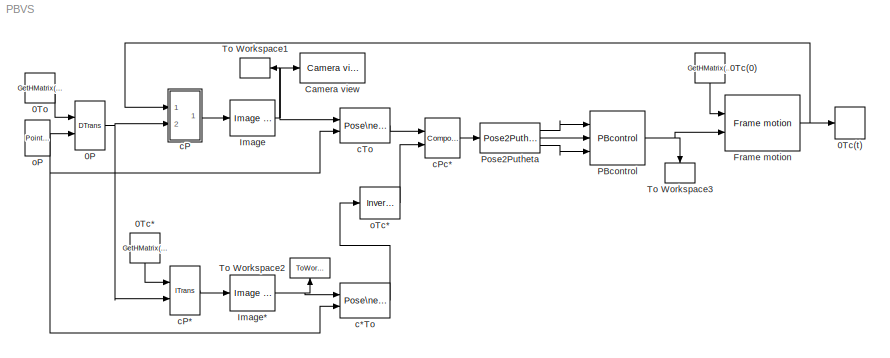
MODEL PBVS
KIND model
BLOCK [Reference] 0P  REF=vs/Features/DTrans  (lib defined in slx_df1018bcac68)
  Ports = [2, 1]
  RTWFcnNameOpts = Auto
  RTWFileNameOpts = Auto
  RTWSystemCode = Auto
  SID = 1
  ShowPortLabels = on
  SourceBlock = vs/Features/DTrans
  SourceType = SubSystem
  TreatAsAtomicUnit = off
BLOCK [Constant] 0Tc(0)
  SID = 2
  Value = GetHMatrix(T0c_0)
  VectorParams1D = off
BLOCK [ToWorkspace] 0Tc(t)
  MaxDataPoints = inf
  Ports = [1]
  SID = 3
  SampleTime = -1
  SaveFormat = Structure With Time
  VariableName = T0c
BLOCK [Constant] 0Tc*
  SID = 4
  Value = GetHMatrix(T0c_x)
  VectorParams1D = off
BLOCK [Constant] 0To
  SID = 5
  Value = GetHMatrix(T0o)
  VectorParams1D = off
BLOCK [Reference] Camera view  REF=vs/Camera/Camera view  (lib defined in slx_df1018bcac68)
  Ports = [1]
  SID = 6
  SourceBlock = vs/Camera/Camera view
  em = normal
  ms = 15
  st = -1
  umax = get(c,'hres')-1
  umin = 0
  vmax = get(c,'vres')-1
  vmin = 0
BLOCK [Reference] Frame motion  REF=vs/Pose/Frame motion  (lib defined in slx_df1018bcac68)
  Ports = [2, 1]
  RTWFcnNameOpts = Auto
  RTWFileNameOpts = Auto
  RTWSystemCode = Auto
  SID = 7
  ShowPortLabels = on
  SourceBlock = vs/Pose/Frame motion
  SourceType = SubSystem
  TreatAsAtomicUnit = off
BLOCK [Reference] Image  REF=vs/Camera/Image of RSP  (lib defined in slx_df1018bcac68)
  Ports = [1, 1]
  SID = 8
  SourceBlock = vs/Camera/Image of RSP
  fu = get(c,'fu')
  fv = get(c,'fv')
  u0 = get(c,'u0')
  v0 = get(c,'v0')
BLOCK [Reference] Image*  REF=vs/Camera/Image of RSP  (lib defined in slx_df1018bcac68)
  Ports = [1, 1]
  SID = 9
  SourceBlock = vs/Camera/Image of RSP
  fu = get(c,'fu')
  fv = get(c,'fv')
  u0 = get(c,'u0')
  v0 = get(c,'v0')
BLOCK [Reference] PBcontrol  REF=vs/Jacobian/PBcontrol  (lib defined in slx_df1018bcac68)
  Ports = [3, 1]
  SID = 10
  SourceBlock = vs/Jacobian/PBcontrol
  lambda = lambda
BLOCK [Reference] Pose2Putheta  REF=vs/Pose/Pose2Putheta  (lib defined in slx_df1018bcac68)
  Ports = [1, 3]
  RTWFcnNameOpts = Auto
  RTWFileNameOpts = Auto
  RTWSystemCode = Auto
  SID = 11
  ShowPortLabels = on
  SourceBlock = vs/Pose/Pose2Putheta
  SourceType = SubSystem
  TreatAsAtomicUnit = off
BLOCK [ToWorkspace] To Workspace1
  MaxDataPoints = inf
  Ports = [1]
  SID = 12
  SampleTime = -1
  SaveFormat = Structure With Time
  VariableName = img
BLOCK [ToWorkspace] To Workspace2
  MaxDataPoints = inf
  Ports = [1]
  SID = 13
  SampleTime = -1
  SaveFormat = Structure With Time
  VariableName = img_x
BLOCK [ToWorkspace] To Workspace3
  MaxDataPoints = inf
  Ports = [1]
  SID = 14
  SampleTime = -1
  SaveFormat = Structure With Time
  VariableName = cVc
BLOCK [Reference] c*To  REF=vs/Camera/Pose\nestimation  (lib defined in slx_df1018bcac68)
  Ports = [2, 1]
  SID = 15
  SourceBlock = vs/Camera/Pose\nestimation
  fu = get(c,'fu')
  fv = get(c,'fv')
  threshold = 0.001
  u0 = get(c,'u0')
  v0 = get(c,'v0')
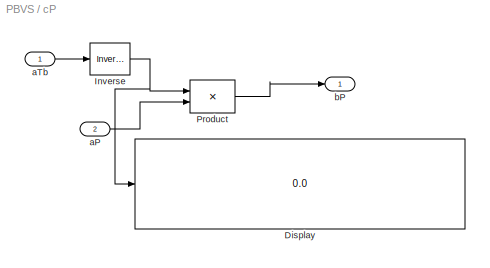
BLOCK [SubSystem] cP
  AncestorBlock = vs/Features/ITrans
  Ports = [2, 1]
  RequestExecContextInheritance = off
  SID = 16
BLOCK [Reference] cP*  REF=vs/Features/ITrans  (lib defined in slx_df1018bcac68)
  Ports = [2, 1]
  RTWFcnNameOpts = Auto
  RTWFileNameOpts = Auto
  RTWSystemCode = Auto
  SID = 17
  ShowPortLabels = on
  SourceBlock = vs/Features/ITrans
  SourceType = SubSystem
  TreatAsAtomicUnit = off
BLOCK [Display] cP/Display
  Decimation = 1
  Ports = [1]
  SID = 16:3
BLOCK [Reference] cP/Inverse  REF=vs/Pose/Inverse  (lib defined in slx_df1018bcac68)
  Ports = [1, 1]
  RTWFcnNameOpts = Auto
  RTWFileNameOpts = Auto
  RTWSystemCode = Auto
  SID = 16:4
  ShowPortLabels = on
  SourceBlock = vs/Pose/Inverse
  SourceType = SubSystem
  TreatAsAtomicUnit = off
BLOCK [Product] cP/Product
  Multiplication = Matrix(*)
  Ports = [2, 1]
  SID = 16:5
BLOCK [Inport] cP/aP
  IconDisplay = Port number
  Port = 2
  SID = 16:2
BLOCK [Inport] cP/aTb
  IconDisplay = Port number
  SID = 16:1
BLOCK [Outport] cP/bP
  IconDisplay = Port number
  SID = 16:6
BLOCK [Reference] cPc*  REF=vs/Pose/Composition  (lib defined in slx_df1018bcac68)
  Ports = [2, 1]
  RTWFcnNameOpts = Auto
  RTWFileNameOpts = Auto
  RTWSystemCode = Auto
  SID = 18
  ShowPortLabels = on
  SourceBlock = vs/Pose/Composition
  SourceType = SubSystem
  TreatAsAtomicUnit = off
BLOCK [Reference] cTo  REF=vs/Camera/Pose\nestimation  (lib defined in slx_df1018bcac68)
  Ports = [2, 1]
  SID = 19
  SourceBlock = vs/Camera/Pose\nestimation
  fu = get(c,'fu')
  fv = get(c,'fv')
  threshold = 0.001
  u0 = get(c,'u0')
  v0 = get(c,'v0')
BLOCK [Reference] oP  REF=vs/Features/Point Matrix  (lib defined in slx_df1018bcac68)
  Ports = [0, 1]
  SID = 20
  SourceBlock = vs/Features/Point Matrix
  m = coords(p)
BLOCK [Reference] oTc*  REF=vs/Pose/Inverse  (lib defined in slx_df1018bcac68)
  Ports = [1, 1]
  RTWFcnNameOpts = Auto
  RTWFileNameOpts = Auto
  RTWSystemCode = Auto
  SID = 21
  ShowPortLabels = on
  SourceBlock = vs/Pose/Inverse
  SourceType = SubSystem
  TreatAsAtomicUnit = off
NET 0P:1 -> cP*:2, cP:2
LINE 0Tc(0):1 -> Frame motion:1
LINE 0Tc*:1 -> cP*:1
LINE 0To:1 -> 0P:1
NET Frame motion:1 -> 0Tc(t):1, cP:1
NET Image*:1 -> To Workspace2:1, c*To:1
NET Image:1 -> Camera view:1, To Workspace1:1, cTo:1
NET PBcontrol:1 -> Frame motion:2, To Workspace3:1
LINE Pose2Putheta:1 -> PBcontrol:1
LINE Pose2Putheta:2 -> PBcontrol:2
LINE Pose2Putheta:3 -> PBcontrol:3
LINE c*To:1 -> oTc*:1
LINE cP*:1 -> Image*:1
NET cP/Inverse:1 -> cP/Display:1, cP/Product:1
LINE cP/Product:1 -> cP/bP:1
LINE cP/aP:1 -> cP/Product:2
LINE cP/aTb:1 -> cP/Inverse:1
LINE cP:1 -> Image:1
LINE cPc*:1 -> Pose2Putheta:1
LINE cTo:1 -> cPc*:1
NET oP:1 -> 0P:2, c*To:2, cTo:2
LINE oTc*:1 -> cPc*:2
note: NET lines group one-source signal fan-out (src -> all destinations, sorted); 1:1 wires keep LINE
